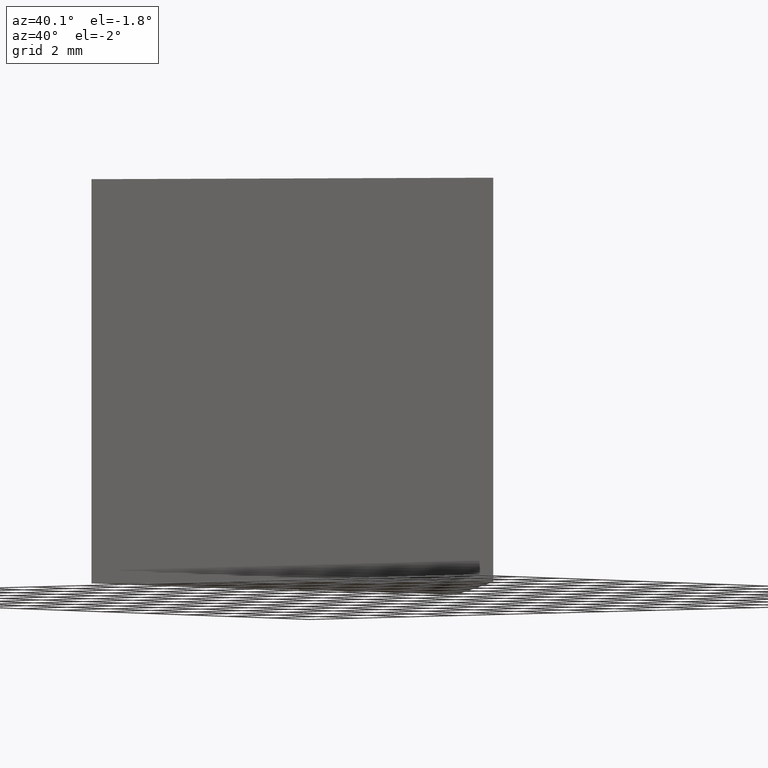
[diagram: clean part render]
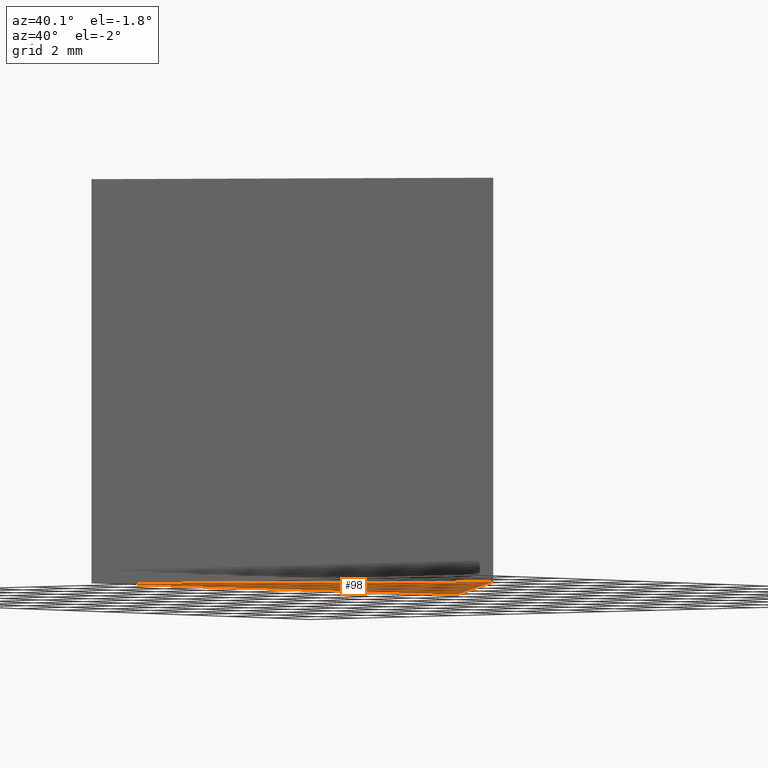
[diagram: same view with one face highlighted and labeled with its STEP entity id]
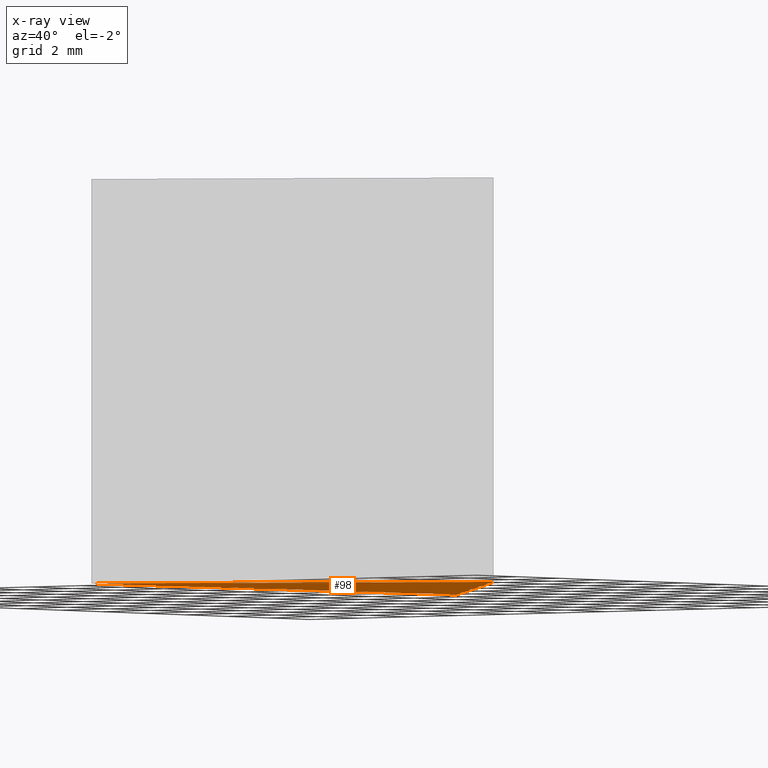
[diagram: x-ray of the same camera — body ghosted, the highlighted face saturated]
A machine part, auxiliary view. The second image highlights one B-rep face of the part: STEP entity #98.
The next image is the same camera in x-ray: the body ghosted, the highlighted face saturated — about 0% of this face is hidden behind the body in this view.
In plain terms, the highlighted planar face has unit normal (0, 0, -1).
Its self-contained STEP definition (entity closure, byte-faithful):
#2 = CARTESIAN_POINT ( 'NONE',  ( 11.11417082101136700, 7.739990180066555100, 0.0000000000000000000 ) ) ;
#3 = CARTESIAN_POINT ( 'NONE',  ( 11.11417082101136700, 7.739990180066555100, 0.0000000000000000000 ) ) ;
#17 = DIRECTION ( 'NONE',  ( -0.7109728236074626100, 0.7032194850056644500, 0.0000000000000000000 ) ) ;
#28 = CARTESIAN_POINT ( 'NONE',  ( 2.227010525918083200, 16.53023374263736000, 0.0000000000000000000 ) ) ;
#34 = AXIS2_PLACEMENT_3D ( 'NONE', #102, #159, #167 ) ;
#41 = VERTEX_POINT ( 'NONE', #28 ) ;
#43 = VECTOR ( 'NONE', #54, 1000.000000000000100 ) ;
#46 = VERTEX_POINT ( 'NONE', #66 ) ;
#47 = ORIENTED_EDGE ( 'NONE', *, *, #96, .F. ) ;
#48 = VECTOR ( 'NONE', #17, 1000.000000000000000 ) ;
#49 = EDGE_LOOP ( 'NONE', ( #47, #143, #67 ) ) ;
#50 = FACE_OUTER_BOUND ( 'NONE', #49, .T. ) ;
#54 = DIRECTION ( 'NONE',  ( 0.8342399877260263700, 0.5514015260034009800, -0.0000000000000000000 ) ) ;
#58 = EDGE_CURVE ( 'NONE', #41, #137, #97, .T. ) ;
#66 = CARTESIAN_POINT ( 'NONE',  ( 11.11417082101136700, 7.739990180066555100, 0.0000000000000000000 ) ) ;
#67 = ORIENTED_EDGE ( 'NONE', *, *, #69, .F. ) ;
#69 = EDGE_CURVE ( 'NONE', #46, #41, #108, .T. ) ;
#76 = VECTOR ( 'NONE', #116, 1000.000000000000100 ) ;
#81 = PLANE ( 'NONE',  #34 ) ;
#96 = EDGE_CURVE ( 'NONE', #137, #46, #105, .T. ) ;
#97 = LINE ( 'NONE', #160, #76 ) ;
#98 = ADVANCED_FACE ( 'NONE', ( #50 ), #81, .T. ) ;
#102 = CARTESIAN_POINT ( 'NONE',  ( 0.0000000000000000000, 0.0000000000000000000, 0.0000000000000000000 ) ) ;
#105 = LINE ( 'NONE', #2, #43 ) ;
#108 = LINE ( 'NONE', #3, #48 ) ;
#116 = DIRECTION ( 'NONE',  ( -0.09777970958415389800, -0.9952080829623715100, -0.0000000000000000000 ) ) ;
#137 = VERTEX_POINT ( 'NONE', #145 ) ;
#143 = ORIENTED_EDGE ( 'NONE', *, *, #58, .F. ) ;
#145 = CARTESIAN_POINT ( 'NONE',  ( 0.6861709744360347000, 0.8474711050240408800, 0.0000000000000000000 ) ) ;
#159 = DIRECTION ( 'NONE',  ( 0.0000000000000000000, 0.0000000000000000000, -1.000000000000000000 ) ) ;
#160 = CARTESIAN_POINT ( 'NONE',  ( 0.6861709744360347000, 0.8474711050240408800, 0.0000000000000000000 ) ) ;
#167 = DIRECTION ( 'NONE',  ( -1.000000000000000000, 0.0000000000000000000, 0.0000000000000000000 ) ) ;